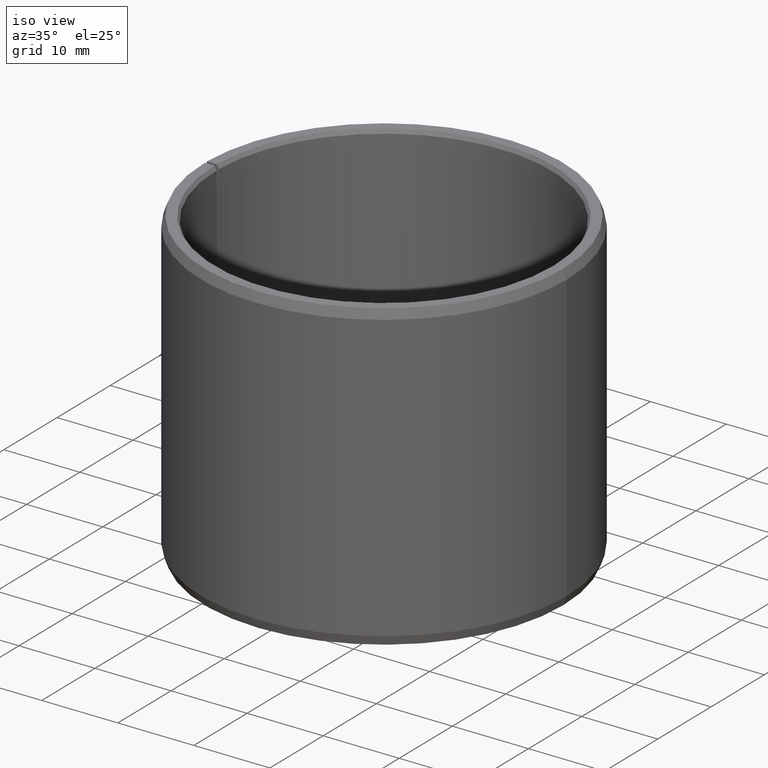
[diagram: clean part render]
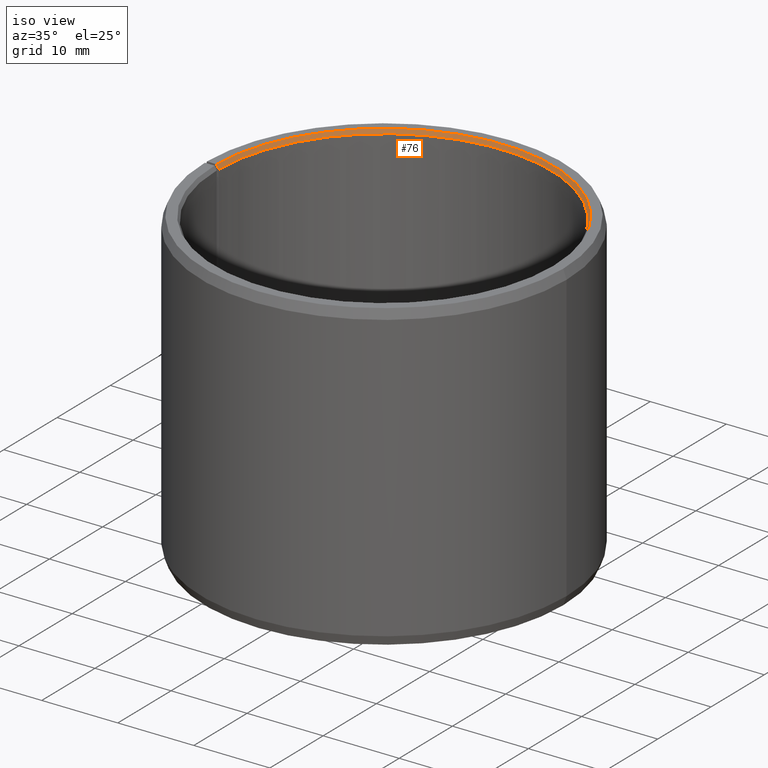
[diagram: same view with one face highlighted and labeled with its STEP entity id]
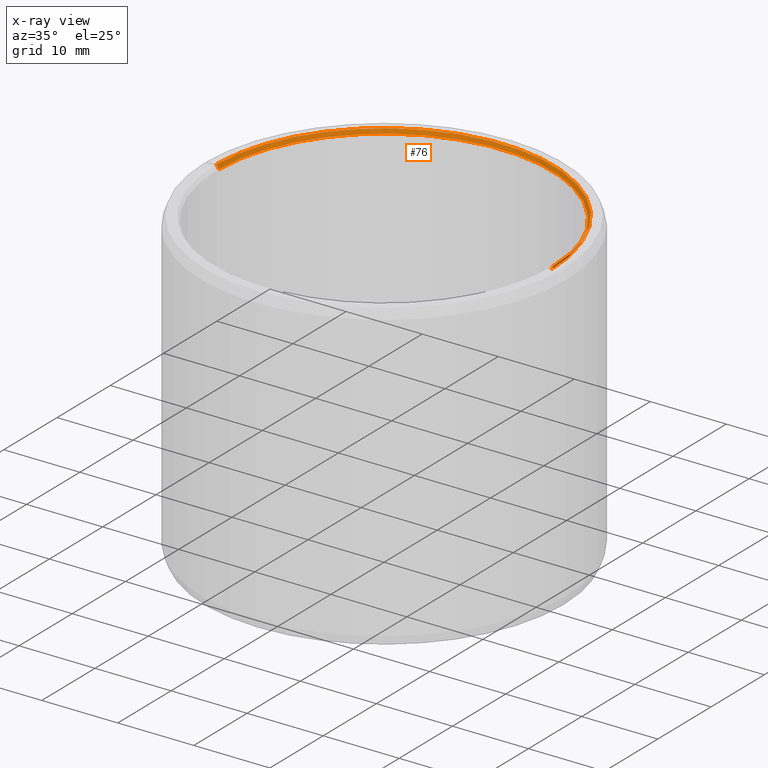
[diagram: x-ray of the same camera — body ghosted, the highlighted face saturated]
A machine part, iso view. The second image highlights one B-rep face of the part: STEP entity #76.
The next image is the same camera in x-ray: the body ghosted, the highlighted face saturated — about 0% of this face is hidden behind the body in this view.
In plain terms, the highlighted conical surface has half-angle 30 deg.
Its self-contained STEP definition (entity closure, byte-faithful):
#76=ADVANCED_FACE('',(#94),#95,.F.);
#94=FACE_OUTER_BOUND('',#126,.T.);
#95=CONICAL_SURFACE('',#127,22.1443375672974,0.523598775598294);
#126=EDGE_LOOP('',(#163,#164,#165,#166));
#127=AXIS2_PLACEMENT_3D('',#167,#168,#169);
#163=ORIENTED_EDGE('',*,*,#284,.F.);
#164=ORIENTED_EDGE('',*,*,#285,.T.);
#165=ORIENTED_EDGE('',*,*,#286,.T.);
#166=ORIENTED_EDGE('',*,*,#281,.F.);
#167=CARTESIAN_POINT('',(2.2164417670976E-014,-2.47905013126536E-014,39.75));
#168=DIRECTION('',(5.48707263966375E-016,-6.09939603923743E-016,1.0));
#169=DIRECTION('',(-1.0,1.89882151931499E-015,5.48707263966376E-016));
#281=EDGE_CURVE('',#318,#321,#322,.T.);
#284=EDGE_CURVE('',#326,#318,#327,.T.);
#285=EDGE_CURVE('',#326,#328,#329,.T.);
#286=EDGE_CURVE('',#328,#321,#330,.T.);
#318=VERTEX_POINT('',#380);
#321=VERTEX_POINT('',#384);
#322=CIRCLE('',#385,22.0);
#326=VERTEX_POINT('',#390);
#327=LINE('',#391,#392);
#328=VERTEX_POINT('',#393);
#329=CIRCLE('',#394,22.2886751345948);
#330=LINE('',#395,#396);
#380=CARTESIAN_POINT('',(22.0,-6.91063127947265E-014,39.5));
#384=CARTESIAN_POINT('',(-21.9966492934406,0.383952941620257,39.5));
#385=AXIS2_PLACEMENT_3D('',#465,#466,#467);
#390=CARTESIAN_POINT('',(22.2886751345948,-6.99947776623057E-014,40.0));
#391=CARTESIAN_POINT('',(22.1443375672974,-6.95505452285161E-014,39.75));
#392=VECTOR('',#472,1.0);
#393=CARTESIAN_POINT('',(-22.2852804614142,0.388991017397544,40.0));
#394=AXIS2_PLACEMENT_3D('',#473,#474,#475);
#395=CARTESIAN_POINT('',(-22.2852804614142,0.388991017397541,40.0));
#396=VECTOR('',#476,10.0);
#465=CARTESIAN_POINT('',(2.20272408549844E-014,-2.4653324496662E-014,39.5));
#466=DIRECTION('',(5.48707263966375E-016,-6.09939603923743E-016,1.0));
#467=DIRECTION('',(-1.0,1.89882151931499E-015,5.48707263966376E-016));
#472=DIRECTION('',(-0.499999999999996,1.53886629138703E-015,-0.866025403784441));
#473=CARTESIAN_POINT('',(2.23015944869676E-014,-2.49276781286452E-014,40.0));
#474=DIRECTION('',(5.48707263966375E-016,-6.09939603923743E-016,1.0));
#475=DIRECTION('',(-1.0,1.89882151931499E-015,5.48707263966376E-016));
#476=DIRECTION('',(0.499923847578191,-0.00872620321864218,-0.866025403784441));